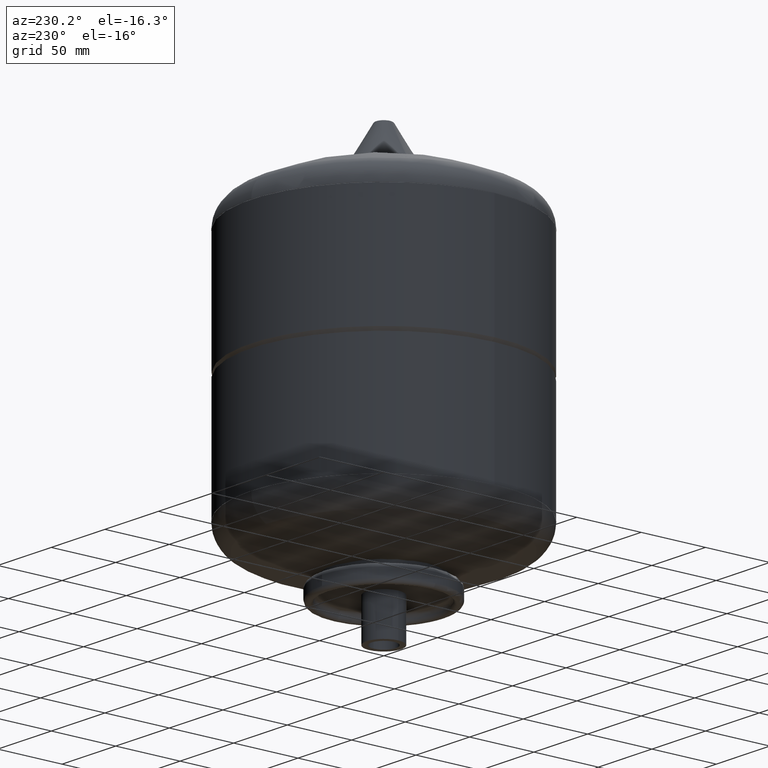
[diagram: clean part render]
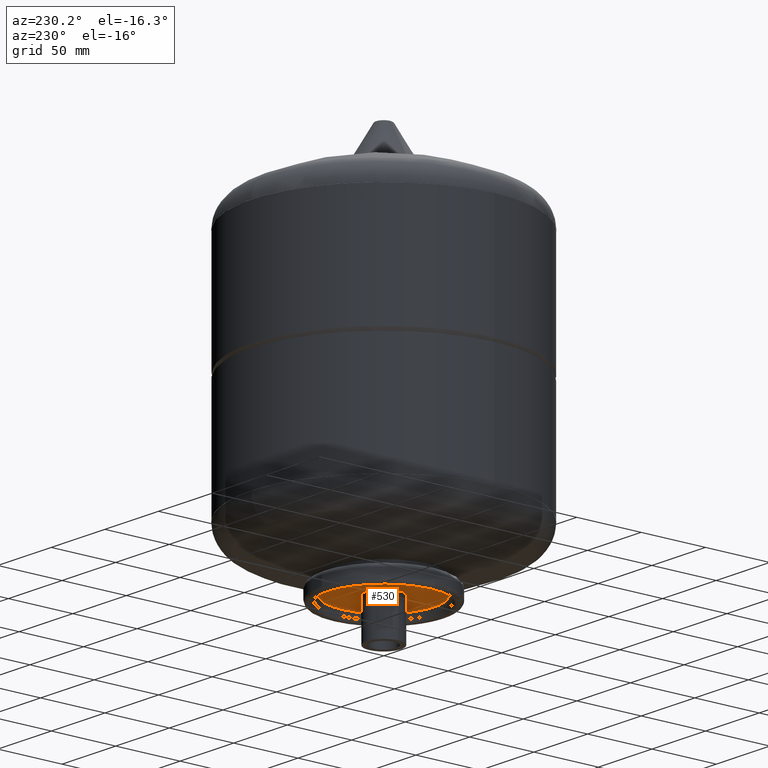
[diagram: same view with one face highlighted and labeled with its STEP entity id]
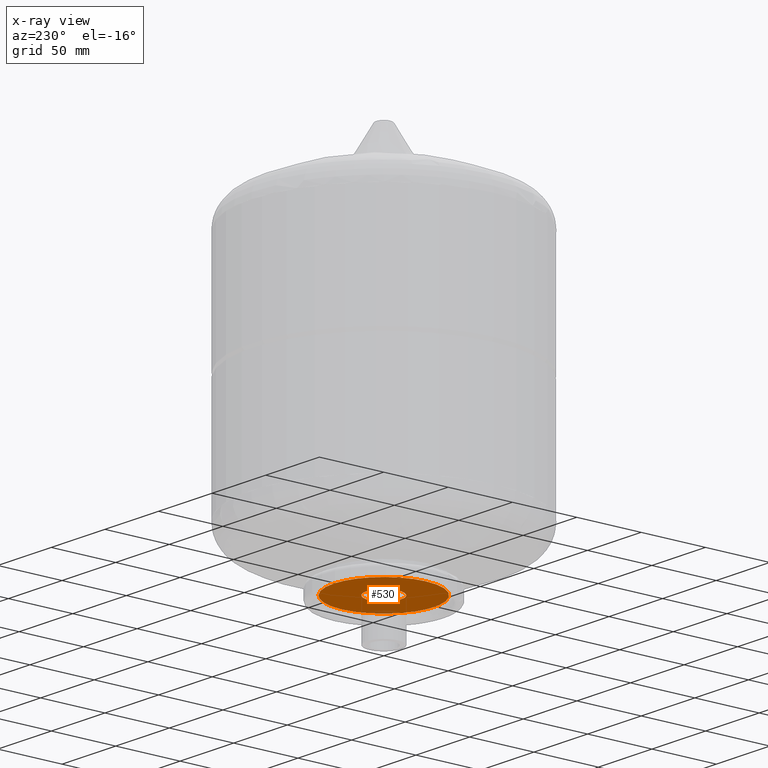
[diagram: x-ray of the same camera — body ghosted, the highlighted face saturated]
A machine part, auxiliary view. The second image highlights one B-rep face of the part: STEP entity #530.
The next image is the same camera in x-ray: the body ghosted, the highlighted face saturated — about 2% of this face is hidden behind the body in this view.
In plain terms, the highlighted planar face has unit normal (0, 0, -1).
Its self-contained STEP definition (entity closure, byte-faithful):
#276=CARTESIAN_POINT('',(13.449999999999999,0.0,30.999999999999989));
#277=VERTEX_POINT('',#276);
#286=CARTESIAN_POINT('',(-13.449999999999999,1.647096E-015,30.999999999999993));
#287=VERTEX_POINT('',#286);
#288=CARTESIAN_POINT('',(0.0,0.0,30.999999999999993));
#289=DIRECTION('',(0.0,0.0,-1.0));
#290=DIRECTION('',(1.0,0.0,0.0));
#291=AXIS2_PLACEMENT_3D('',#288,#289,#290);
#292=CIRCLE('',#291,13.449999999999999);
#293=EDGE_CURVE('',#277,#287,#292,.T.);
#410=CARTESIAN_POINT('',(-39.000000000000007,3.136209E-016,31.0));
#411=VERTEX_POINT('',#410);
#437=CARTESIAN_POINT('',(39.000000000000007,-4.462344E-015,31.0));
#438=VERTEX_POINT('',#437);
#446=CARTESIAN_POINT('',(0.0,39.0,30.999999999999996));
#447=VERTEX_POINT('',#446);
#448=CARTESIAN_POINT('',(0.0,0.0,31.0));
#449=DIRECTION('',(0.0,0.0,-1.0));
#450=DIRECTION('',(0.0,1.0,0.0));
#451=AXIS2_PLACEMENT_3D('',#448,#449,#450);
#452=CIRCLE('',#451,39.000000000000007);
#453=EDGE_CURVE('',#447,#438,#452,.T.);
#455=CARTESIAN_POINT('',(0.0,0.0,31.0));
#456=DIRECTION('',(0.0,0.0,-1.0));
#457=DIRECTION('',(0.0,1.0,0.0));
#458=AXIS2_PLACEMENT_3D('',#455,#456,#457);
#459=CIRCLE('',#458,39.000000000000007);
#460=EDGE_CURVE('',#411,#447,#459,.T.);
#504=CARTESIAN_POINT('',(0.0,19.500000000000000,30.999999999999993));
#505=DIRECTION('',(0.0,0.0,-1.0));
#506=DIRECTION('',(-1.0,0.0,0.0));
#507=AXIS2_PLACEMENT_3D('',#504,#505,#506);
#508=PLANE('',#507);
#509=ORIENTED_EDGE('',*,*,#453,.T.);
#510=CARTESIAN_POINT('',(0.0,0.0,31.0));
#511=DIRECTION('',(0.0,0.0,-1.0));
#512=DIRECTION('',(0.0,1.0,0.0));
#513=AXIS2_PLACEMENT_3D('',#510,#511,#512);
#514=CIRCLE('',#513,39.000000000000007);
#515=EDGE_CURVE('',#438,#411,#514,.T.);
#516=ORIENTED_EDGE('',*,*,#515,.T.);
#517=ORIENTED_EDGE('',*,*,#460,.T.);
#518=EDGE_LOOP('',(#509,#516,#517));
#519=FACE_OUTER_BOUND('',#518,.T.);
#520=CARTESIAN_POINT('',(0.0,0.0,30.999999999999993));
#521=DIRECTION('',(0.0,0.0,-1.0));
#522=DIRECTION('',(1.0,0.0,0.0));
#523=AXIS2_PLACEMENT_3D('',#520,#521,#522);
#524=CIRCLE('',#523,13.449999999999999);
#525=EDGE_CURVE('',#287,#277,#524,.T.);
#526=ORIENTED_EDGE('',*,*,#525,.F.);
#527=ORIENTED_EDGE('',*,*,#293,.F.);
#528=EDGE_LOOP('',(#526,#527));
#529=FACE_BOUND('',#528,.T.);
#530=ADVANCED_FACE('',(#519,#529),#508,.T.);